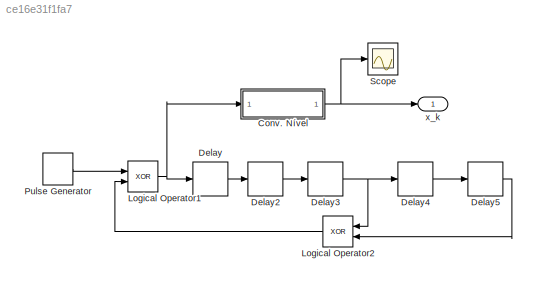
MODEL slx_ce16e31f1fa7
KIND model
CONFIG AbsTol = auto
CONFIG FixedStep = auto
CONFIG MaxStep = auto
CONFIG MinStep = auto
CONFIG RelTol = 1e-3
CONFIG SampleTimeConstraint = Unconstrained
CONFIG Solver = ode45
CONFIG SolverMode = Auto
CONFIG SolverName = ode45
CONFIG StartTime = 0.0
CONFIG StopTime = 1
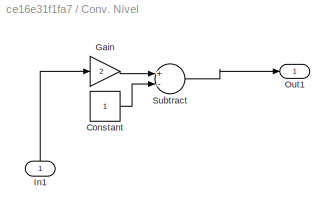
BLOCK [SubSystem] Conv. Nível
  FunctionWithSeparateData = off
  MaskHideContents = off
  MinAlgLoopOccurrences = off
  Opaque = off
  Ports = [1, 1]
  PropExecContextOutsideSubsystem = off
  RTWSystemCode = Auto
  RequestExecContextInheritance = off
BLOCK [Constant] Conv. Nível/Constant
BLOCK [Gain] Conv. Nível/Gain
  Gain = 2
  OutDataTypeStr = Inherit: Inherit via internal rule
  ParamDataTypeStr = Inherit: Inherit via internal rule
  SaturateOnIntegerOverflow = off
BLOCK [Inport] Conv. Nível/In1
  IconDisplay = Port number
BLOCK [Outport] Conv. Nível/Out1
  IconDisplay = Port number
BLOCK [Sum] Conv. Nível/Subtract
  InputSameDT = off
  Inputs = +-
  OutDataTypeStr = Inherit: Inherit via internal rule
  Ports = [2, 1]
  SaturateOnIntegerOverflow = off
BLOCK [Delay] Delay
  DelayLength = 1
  InputPortMap = u0
  Ports = [1, 1]
  SampleTime = 0.02
BLOCK [Delay] Delay2
  DelayLength = 1
  InputPortMap = u0
  Ports = [1, 1]
BLOCK [Delay] Delay3
  DelayLength = 1
  InputPortMap = u0
  Ports = [1, 1]
BLOCK [Delay] Delay4
  DelayLength = 1
  InputPortMap = u0
  Ports = [1, 1]
BLOCK [Delay] Delay5
  DelayLength = 1
  InputPortMap = u0
  Ports = [1, 1]
BLOCK [Logic] Logical Operator1
  AllPortsSameDT = off
  Operator = XOR
  OutDataTypeStr = boolean
  Ports = [2, 1]
BLOCK [Logic] Logical Operator2
  AllPortsSameDT = off
  Operator = XOR
  OutDataTypeStr = boolean
  Ports = [2, 1]
BLOCK [DiscretePulseGenerator] Pulse Generator
  Amplitude = 0
  Period = 0.02
  Ports = [0, 1]
  PulseType = Time based
  PulseWidth = 50
BLOCK [Scope] Scope
  Floating = off
  NumInputPorts = 1
  Ports = [1]
  ShowLegends = off
BLOCK [Outport] x_k
  IconDisplay = Port number
LINE Conv. Nível/Constant:1 -> Conv. Nível/Subtract:2
LINE Conv. Nível/Gain:1 -> Conv. Nível/Subtract:1
LINE Conv. Nível/In1:1 -> Conv. Nível/Gain:1
LINE Conv. Nível/Subtract:1 -> Conv. Nível/Out1:1
NET Conv. Nível:1 -> Scope:1, x_k:1
LINE Delay2:1 -> Delay3:1
NET Delay3:1 -> Delay4:1, Logical Operator2:1
LINE Delay4:1 -> Delay5:1
LINE Delay5:1 -> Logical Operator2:2
LINE Delay:1 -> Delay2:1
NET Logical Operator1:1 -> Conv. Nível:1, Delay:1
LINE Logical Operator2:1 -> Logical Operator1:2
LINE Pulse Generator:1 -> Logical Operator1:1
note: NET lines group one-source signal fan-out (src -> all destinations, sorted); 1:1 wires keep LINE
